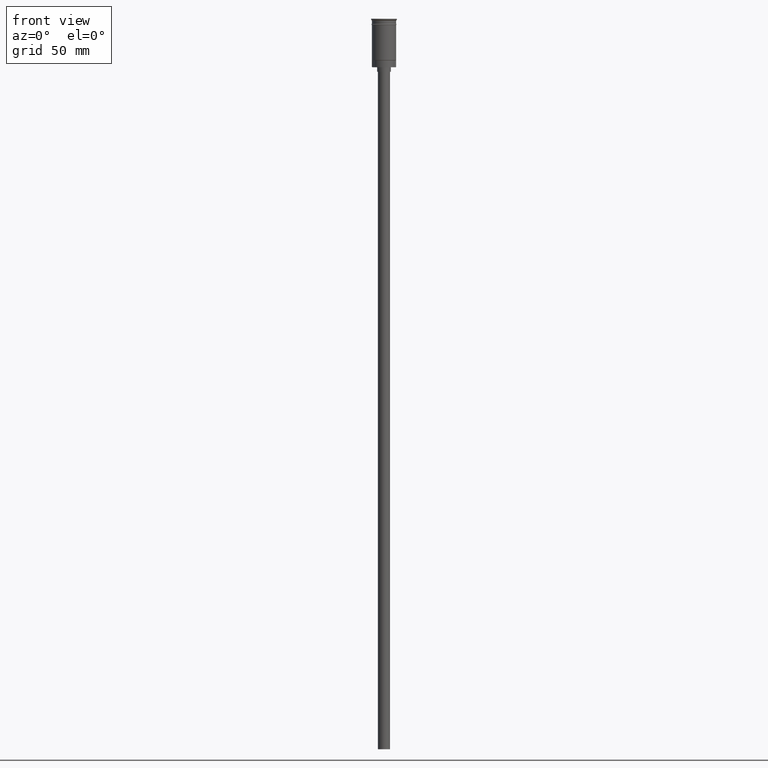
[diagram: clean part render]
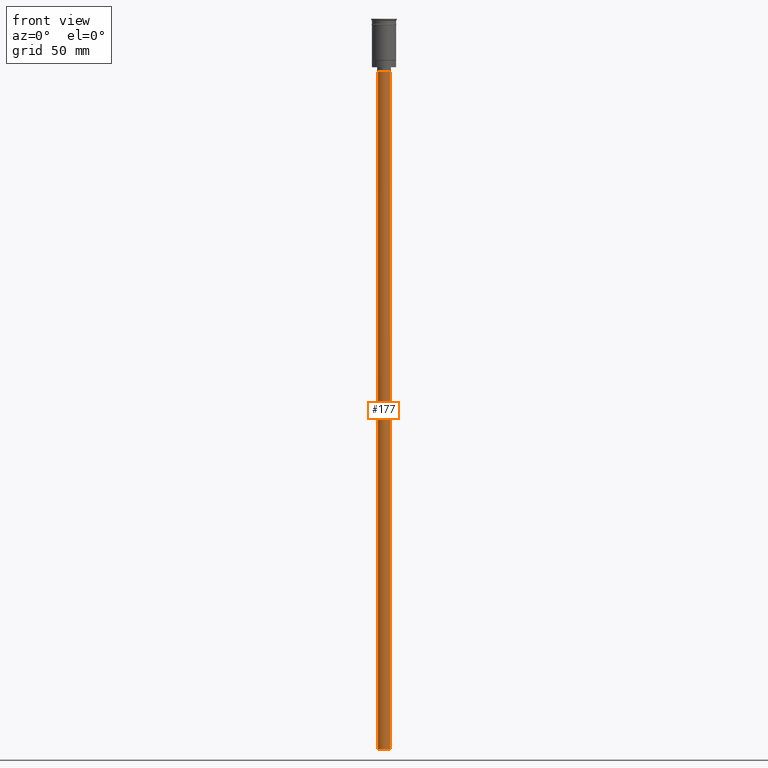
[diagram: same view with one face highlighted and labeled with its STEP entity id]
A machine part, front view. The second image highlights one B-rep face of the part: STEP entity #177.
In plain terms, the highlighted cylindrical surface (edge-blend (fillet) strip) has radius 4 mm, axis along (-0, -0, 1).
Its self-contained STEP definition (entity closure, byte-faithful):
#8 = DIRECTION ( 'NONE',  ( 1.000000000000000000, 0.000000000000000000, 0.000000000000000000 ) ) ;
#12 = CARTESIAN_POINT ( 'NONE',  ( -4.000000000000000000, 4.898587196589412829E-16, -482.0000000000000000 ) ) ;
#62 = AXIS2_PLACEMENT_3D ( 'NONE', #983, #1491, #467 ) ;
#66 = VECTOR ( 'NONE', #596, 1000.000000000000000 ) ;
#100 = FACE_OUTER_BOUND ( 'NONE', #708, .T. ) ;
#141 = VERTEX_POINT ( 'NONE', #576 ) ;
#162 = ORIENTED_EDGE ( 'NONE', *, *, #1428, .T. ) ;
#177 = ADVANCED_FACE ( 'NONE', ( #100 ), #1076, .T. ) ;
#205 = ORIENTED_EDGE ( 'NONE', *, *, #604, .F. ) ;
#467 = DIRECTION ( 'NONE',  ( -1.000000000000000000, 0.000000000000000000, 0.000000000000000000 ) ) ;
#469 = DIRECTION ( 'NONE',  ( -0.000000000000000000, -0.000000000000000000, 1.000000000000000000 ) ) ;
#476 = AXIS2_PLACEMENT_3D ( 'NONE', #1273, #519, #1017 ) ;
#484 = ORIENTED_EDGE ( 'NONE', *, *, #717, .F. ) ;
#519 = DIRECTION ( 'NONE',  ( 0.000000000000000000, 0.000000000000000000, -1.000000000000000000 ) ) ;
#523 = VECTOR ( 'NONE', #1088, 1000.000000000000000 ) ;
#576 = CARTESIAN_POINT ( 'NONE',  ( 4.000000000000000000, 0.000000000000000000, -35.00000000000000000 ) ) ;
#596 = DIRECTION ( 'NONE',  ( -0.000000000000000000, -0.000000000000000000, 1.000000000000000000 ) ) ;
#604 = EDGE_CURVE ( 'NONE', #1032, #860, #752, .T. ) ;
#611 = CIRCLE ( 'NONE', #476, 4.000000000000000000 ) ;
#708 = EDGE_LOOP ( 'NONE', ( #205, #484, #162, #1195 ) ) ;
#717 = EDGE_CURVE ( 'NONE', #1487, #1032, #611, .T. ) ;
#748 = CARTESIAN_POINT ( 'NONE',  ( 4.000000000000000000, 0.000000000000000000, -482.0000000000000000 ) ) ;
#752 = LINE ( 'NONE', #12, #523 ) ;
#831 = EDGE_CURVE ( 'NONE', #141, #860, #1593, .T. ) ;
#860 = VERTEX_POINT ( 'NONE', #950 ) ;
#950 = CARTESIAN_POINT ( 'NONE',  ( -4.000000000000000000, 4.898587196589412829E-16, -35.00000000000000000 ) ) ;
#953 = CARTESIAN_POINT ( 'NONE',  ( 0.000000000000000000, 0.000000000000000000, -482.0000000000000000 ) ) ;
#983 = CARTESIAN_POINT ( 'NONE',  ( 0.000000000000000000, 0.000000000000000000, -35.00000000000000000 ) ) ;
#1017 = DIRECTION ( 'NONE',  ( -1.000000000000000000, 0.000000000000000000, 0.000000000000000000 ) ) ;
#1032 = VERTEX_POINT ( 'NONE', #1225 ) ;
#1065 = AXIS2_PLACEMENT_3D ( 'NONE', #953, #469, #8 ) ;
#1076 = CYLINDRICAL_SURFACE ( 'NONE', #1065, 4.000000000000000000 ) ;
#1088 = DIRECTION ( 'NONE',  ( -0.000000000000000000, -0.000000000000000000, 1.000000000000000000 ) ) ;
#1195 = ORIENTED_EDGE ( 'NONE', *, *, #831, .T. ) ;
#1210 = LINE ( 'NONE', #1324, #66 ) ;
#1225 = CARTESIAN_POINT ( 'NONE',  ( -4.000000000000000000, 4.898587196589412829E-16, -482.0000000000000000 ) ) ;
#1273 = CARTESIAN_POINT ( 'NONE',  ( 0.000000000000000000, 0.000000000000000000, -482.0000000000000000 ) ) ;
#1324 = CARTESIAN_POINT ( 'NONE',  ( 4.000000000000000000, 0.000000000000000000, -482.0000000000000000 ) ) ;
#1428 = EDGE_CURVE ( 'NONE', #1487, #141, #1210, .T. ) ;
#1487 = VERTEX_POINT ( 'NONE', #748 ) ;
#1491 = DIRECTION ( 'NONE',  ( 0.000000000000000000, 0.000000000000000000, -1.000000000000000000 ) ) ;
#1593 = CIRCLE ( 'NONE', #62, 4.000000000000000000 ) ;